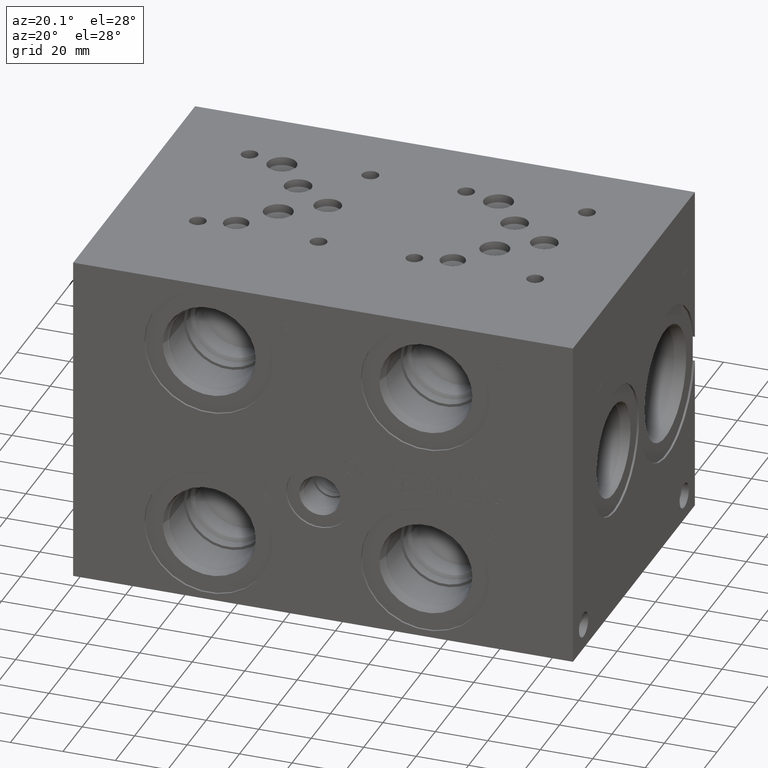
[diagram: clean part render]
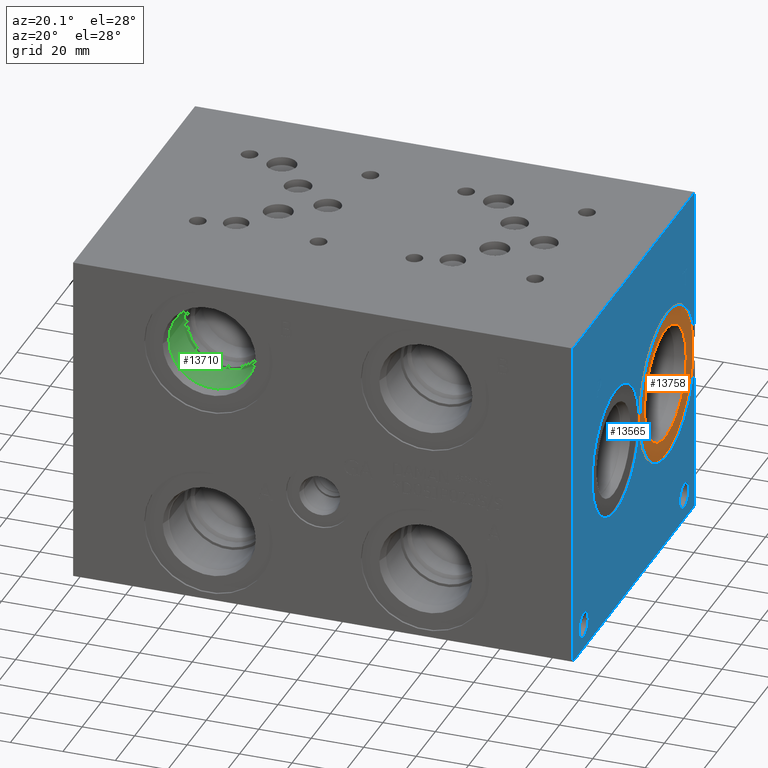
[diagram: same view with three faces highlighted in distinct colors, each labeled with its STEP entity id]
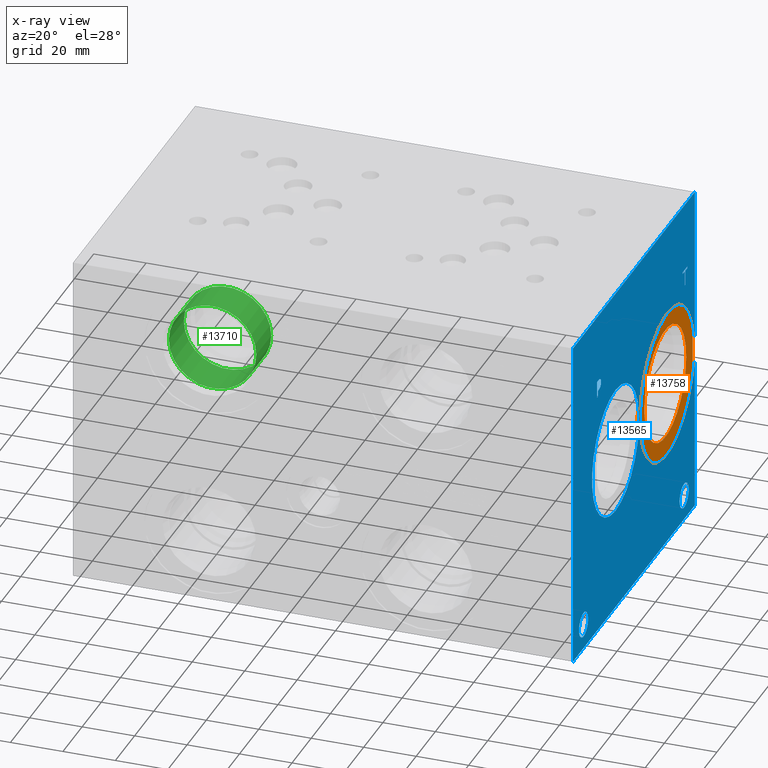
[diagram: x-ray of the same camera — body ghosted, the three highlighted faces saturated]
A machine part, auxiliary view with three faces highlighted in distinct colors.
The next image is the same camera in x-ray (body ghosted, the three faces saturated) — at least one of them is partly hidden behind the body in this view.
Their STEP definitions:

[orange] entity #13758 — the highlighted planar face has unit normal (1, 0, 0).
#471=CIRCLE('',#14603,28.9814);
#472=CIRCLE('',#14604,21.7551);
#1136=FACE_BOUND('',#2655,.T.);
#1852=FACE_OUTER_BOUND('',#2654,.T.);
#2654=EDGE_LOOP('',(#12041,#12042));
#2655=EDGE_LOOP('',(#12043));
#3899=LINE('',#23843,#5119);
#5119=VECTOR('',#17468,10.);
#6425=VERTEX_POINT('',#23841);
#6426=VERTEX_POINT('',#23842);
#6427=VERTEX_POINT('',#23845);
#8324=EDGE_CURVE('',#6425,#6426,#3899,.T.);
#8325=EDGE_CURVE('',#6425,#6426,#471,.T.);
#8326=EDGE_CURVE('',#6427,#6427,#472,.T.);
#12041=ORIENTED_EDGE('',*,*,#8324,.F.);
#12042=ORIENTED_EDGE('',*,*,#8325,.T.);
#12043=ORIENTED_EDGE('',*,*,#8326,.F.);
#12550=PLANE('',#14602);
#13758=ADVANCED_FACE('',(#1852,#1136),#12550,.T.);
#14602=AXIS2_PLACEMENT_3D('',#23840,#17466,#17467);
#14603=AXIS2_PLACEMENT_3D('',#23844,#17469,#17470);
#14604=AXIS2_PLACEMENT_3D('',#23846,#17471,#17472);
#17466=DIRECTION('center_axis',(1.,0.,0.));
#17467=DIRECTION('ref_axis',(0.,1.,0.));
#17468=DIRECTION('',(0.,0.,-1.));
#17469=DIRECTION('center_axis',(1.,0.,0.));
#17470=DIRECTION('ref_axis',(0.,1.,0.));
#17471=DIRECTION('center_axis',(1.,0.,0.));
#17472=DIRECTION('ref_axis',(0.,1.,0.));
#23840=CARTESIAN_POINT('Origin',(189.7126,98.425,63.5));
#23841=CARTESIAN_POINT('',(189.7126,127.,68.3364161276714));
#23842=CARTESIAN_POINT('',(189.7126,127.,58.6635838723286));
#23843=CARTESIAN_POINT('',(189.7126,127.,31.75));
#23844=CARTESIAN_POINT('Origin',(189.7126,98.425,63.5));
#23845=CARTESIAN_POINT('',(189.7126,76.6699,63.5));
#23846=CARTESIAN_POINT('Origin',(189.7126,98.425,63.5));

[blue] entity #13565 — the highlighted planar face has unit normal (1, 0, 0).
#186=CIRCLE('',#14125,28.9814);
#187=CIRCLE('',#14126,24.4856);
#188=CIRCLE('',#14127,24.4856);
#189=CIRCLE('',#14128,4.7625);
#190=CIRCLE('',#14129,4.7625);
#191=CIRCLE('',#14130,4.7625);
#192=CIRCLE('',#14131,4.7625);
#854=B_SPLINE_CURVE_WITH_KNOTS('',2,(#22734,#22735,#22736,#22737),
 .UNSPECIFIED.,.F.,.F.,(3,1,3),(0.,1.,2.),.UNSPECIFIED.);
#856=B_SPLINE_CURVE_WITH_KNOTS('',2,(#22755,#22756,#22757,#22758),
 .UNSPECIFIED.,.F.,.F.,(3,1,3),(0.,1.,2.),.UNSPECIFIED.);
#858=B_SPLINE_CURVE_WITH_KNOTS('',2,(#22804,#22805,#22806,#22807),
 .UNSPECIFIED.,.F.,.F.,(3,1,3),(0.,1.,2.),.UNSPECIFIED.);
#860=B_SPLINE_CURVE_WITH_KNOTS('',2,(#22822,#22823,#22824,#22825),
 .UNSPECIFIED.,.F.,.F.,(3,1,3),(0.,1.,2.),.UNSPECIFIED.);
#1101=FACE_BOUND('',#2427,.T.);
#1102=FACE_BOUND('',#2428,.T.);
#1103=FACE_BOUND('',#2429,.T.);
#1104=FACE_BOUND('',#2430,.T.);
#1105=FACE_BOUND('',#2431,.T.);
#1659=FACE_OUTER_BOUND('',#2426,.T.);
#2426=EDGE_LOOP('',(#11106,#11107,#11108,#11109,#11110,#11111));
#2427=EDGE_LOOP('',(#11112,#11113));
#2428=EDGE_LOOP('',(#11114,#11115));
#2429=EDGE_LOOP('',(#11116,#11117));
#2430=EDGE_LOOP('',(#11118,#11119,#11120,#11121,#11122,#11123,#11124,#11125));
#2431=EDGE_LOOP('',(#11126,#11127,#11128,#11129,#11130,#11131,#11132,#11133,
#11134));
#2765=LINE('',#17943,#3985);
#3695=LINE('',#22767,#4915);
#3698=LINE('',#22773,#4918);
#3701=LINE('',#22779,#4921);
#3704=LINE('',#22785,#4924);
#3707=LINE('',#22791,#4927);
#3711=LINE('',#22836,#4931);
#3712=LINE('',#22837,#4932);
#3713=LINE('',#22839,#4933);
#3714=LINE('',#22840,#4934);
#3715=LINE('',#22855,#4935);
#3716=LINE('',#22857,#4936);
#3717=LINE('',#22859,#4937);
#3718=LINE('',#22861,#4938);
#3719=LINE('',#22863,#4939);
#3720=LINE('',#22865,#4940);
#3721=LINE('',#22867,#4941);
#3722=LINE('',#22868,#4942);
#3985=VECTOR('',#14754,10.);
#4915=VECTOR('',#16296,10.);
#4918=VECTOR('',#16301,10.);
#4921=VECTOR('',#16306,10.);
#4924=VECTOR('',#16311,10.);
#4927=VECTOR('',#16316,10.);
#4931=VECTOR('',#16326,10.);
#4932=VECTOR('',#16327,10.);
#4933=VECTOR('',#16328,10.);
#4934=VECTOR('',#16329,10.);
#4935=VECTOR('',#16342,10.);
#4936=VECTOR('',#16343,10.);
#4937=VECTOR('',#16344,10.);
#4938=VECTOR('',#16345,10.);
#4939=VECTOR('',#16346,10.);
#4940=VECTOR('',#16347,10.);
#4941=VECTOR('',#16348,10.);
#4942=VECTOR('',#16349,10.);
#5201=VERTEX_POINT('',#17940);
#5202=VERTEX_POINT('',#17942);
#6064=VERTEX_POINT('',#22732);
#6065=VERTEX_POINT('',#22733);
#6068=VERTEX_POINT('',#22754);
#6070=VERTEX_POINT('',#22766);
#6072=VERTEX_POINT('',#22772);
#6074=VERTEX_POINT('',#22778);
#6076=VERTEX_POINT('',#22784);
#6078=VERTEX_POINT('',#22790);
#6080=VERTEX_POINT('',#22803);
#6082=VERTEX_POINT('',#22832);
#6083=VERTEX_POINT('',#22833);
#6084=VERTEX_POINT('',#22835);
#6085=VERTEX_POINT('',#22838);
#6086=VERTEX_POINT('',#22841);
#6087=VERTEX_POINT('',#22842);
#6088=VERTEX_POINT('',#22845);
#6089=VERTEX_POINT('',#22846);
#6090=VERTEX_POINT('',#22849);
#6091=VERTEX_POINT('',#22850);
#6092=VERTEX_POINT('',#22853);
#6093=VERTEX_POINT('',#22854);
#6094=VERTEX_POINT('',#22856);
#6095=VERTEX_POINT('',#22858);
#6096=VERTEX_POINT('',#22860);
#6097=VERTEX_POINT('',#22862);
#6098=VERTEX_POINT('',#22864);
#6099=VERTEX_POINT('',#22866);
#6544=EDGE_CURVE('',#5201,#5202,#2765,.T.);
#7824=EDGE_CURVE('',#6064,#6065,#854,.T.);
#7828=EDGE_CURVE('',#6068,#6064,#856,.T.);
#7831=EDGE_CURVE('',#6070,#6068,#3695,.T.);
#7834=EDGE_CURVE('',#6072,#6070,#3698,.T.);
#7837=EDGE_CURVE('',#6074,#6072,#3701,.T.);
#7840=EDGE_CURVE('',#6076,#6074,#3704,.T.);
#7843=EDGE_CURVE('',#6078,#6076,#3707,.T.);
#7846=EDGE_CURVE('',#6080,#6078,#858,.T.);
#7849=EDGE_CURVE('',#6065,#6080,#860,.T.);
#7851=EDGE_CURVE('',#6082,#6083,#186,.T.);
#7852=EDGE_CURVE('',#6083,#6084,#3711,.T.);
#7853=EDGE_CURVE('',#5202,#6084,#3712,.T.);
#7854=EDGE_CURVE('',#5201,#6085,#3713,.T.);
#7855=EDGE_CURVE('',#6085,#6082,#3714,.T.);
#7856=EDGE_CURVE('',#6086,#6087,#187,.T.);
#7857=EDGE_CURVE('',#6087,#6086,#188,.T.);
#7858=EDGE_CURVE('',#6088,#6089,#189,.T.);
#7859=EDGE_CURVE('',#6089,#6088,#190,.T.);
#7860=EDGE_CURVE('',#6090,#6091,#191,.T.);
#7861=EDGE_CURVE('',#6091,#6090,#192,.T.);
#7862=EDGE_CURVE('',#6092,#6093,#3715,.T.);
#7863=EDGE_CURVE('',#6093,#6094,#3716,.T.);
#7864=EDGE_CURVE('',#6094,#6095,#3717,.T.);
#7865=EDGE_CURVE('',#6095,#6096,#3718,.T.);
#7866=EDGE_CURVE('',#6096,#6097,#3719,.T.);
#7867=EDGE_CURVE('',#6097,#6098,#3720,.T.);
#7868=EDGE_CURVE('',#6098,#6099,#3721,.T.);
#7869=EDGE_CURVE('',#6099,#6092,#3722,.T.);
#11106=ORIENTED_EDGE('',*,*,#7851,.T.);
#11107=ORIENTED_EDGE('',*,*,#7852,.T.);
#11108=ORIENTED_EDGE('',*,*,#7853,.F.);
#11109=ORIENTED_EDGE('',*,*,#6544,.F.);
#11110=ORIENTED_EDGE('',*,*,#7854,.T.);
#11111=ORIENTED_EDGE('',*,*,#7855,.T.);
#11112=ORIENTED_EDGE('',*,*,#7856,.T.);
#11113=ORIENTED_EDGE('',*,*,#7857,.T.);
#11114=ORIENTED_EDGE('',*,*,#7858,.T.);
#11115=ORIENTED_EDGE('',*,*,#7859,.T.);
#11116=ORIENTED_EDGE('',*,*,#7860,.T.);
#11117=ORIENTED_EDGE('',*,*,#7861,.T.);
#11118=ORIENTED_EDGE('',*,*,#7862,.T.);
#11119=ORIENTED_EDGE('',*,*,#7863,.T.);
#11120=ORIENTED_EDGE('',*,*,#7864,.T.);
#11121=ORIENTED_EDGE('',*,*,#7865,.T.);
#11122=ORIENTED_EDGE('',*,*,#7866,.T.);
#11123=ORIENTED_EDGE('',*,*,#7867,.T.);
#11124=ORIENTED_EDGE('',*,*,#7868,.T.);
#11125=ORIENTED_EDGE('',*,*,#7869,.T.);
#11126=ORIENTED_EDGE('',*,*,#7824,.T.);
#11127=ORIENTED_EDGE('',*,*,#7849,.T.);
#11128=ORIENTED_EDGE('',*,*,#7846,.T.);
#11129=ORIENTED_EDGE('',*,*,#7843,.T.);
#11130=ORIENTED_EDGE('',*,*,#7840,.T.);
#11131=ORIENTED_EDGE('',*,*,#7837,.T.);
#11132=ORIENTED_EDGE('',*,*,#7834,.T.);
#11133=ORIENTED_EDGE('',*,*,#7831,.T.);
#11134=ORIENTED_EDGE('',*,*,#7828,.T.);
#12501=PLANE('',#14124);
#13565=ADVANCED_FACE('',(#1659,#1101,#1102,#1103,#1104,#1105),#12501,.T.);
#14124=AXIS2_PLACEMENT_3D('',#22831,#16322,#16323);
#14125=AXIS2_PLACEMENT_3D('',#22834,#16324,#16325);
#14126=AXIS2_PLACEMENT_3D('',#22843,#16330,#16331);
#14127=AXIS2_PLACEMENT_3D('',#22844,#16332,#16333);
#14128=AXIS2_PLACEMENT_3D('',#22847,#16334,#16335);
#14129=AXIS2_PLACEMENT_3D('',#22848,#16336,#16337);
#14130=AXIS2_PLACEMENT_3D('',#22851,#16338,#16339);
#14131=AXIS2_PLACEMENT_3D('',#22852,#16340,#16341);
#14754=DIRECTION('',(0.,0.,1.));
#16296=DIRECTION('',(0.,1.,0.));
#16301=DIRECTION('',(0.,0.,1.));
#16306=DIRECTION('',(0.,-1.,0.));
#16311=DIRECTION('',(0.,0.,-1.));
#16316=DIRECTION('',(0.,-1.,0.));
#16322=DIRECTION('center_axis',(1.,0.,0.));
#16323=DIRECTION('ref_axis',(0.,1.,0.));
#16324=DIRECTION('center_axis',(-1.,0.,0.));
#16325=DIRECTION('ref_axis',(0.,1.,0.));
#16326=DIRECTION('',(0.,0.,1.));
#16327=DIRECTION('',(0.,1.,0.));
#16328=DIRECTION('',(0.,1.,0.));
#16329=DIRECTION('',(0.,0.,1.));
#16330=DIRECTION('center_axis',(-1.,0.,0.));
#16331=DIRECTION('ref_axis',(0.,0.,-1.));
#16332=DIRECTION('center_axis',(-1.,0.,0.));
#16333=DIRECTION('ref_axis',(0.,0.,-1.));
#16334=DIRECTION('center_axis',(-1.,0.,0.));
#16335=DIRECTION('ref_axis',(0.,1.,0.));
#16336=DIRECTION('center_axis',(-1.,0.,0.));
#16337=DIRECTION('ref_axis',(0.,1.,0.));
#16338=DIRECTION('center_axis',(-1.,0.,0.));
#16339=DIRECTION('ref_axis',(0.,1.,0.));
#16340=DIRECTION('center_axis',(-1.,0.,0.));
#16341=DIRECTION('ref_axis',(0.,1.,0.));
#16342=DIRECTION('',(0.,-1.,0.));
#16343=DIRECTION('',(0.,0.,1.));
#16344=DIRECTION('',(0.,-1.,0.));
#16345=DIRECTION('',(0.,0.,1.));
#16346=DIRECTION('',(0.,1.,0.));
#16347=DIRECTION('',(0.,0.,-1.));
#16348=DIRECTION('',(0.,-1.,0.));
#16349=DIRECTION('',(0.,0.,-1.));
#17940=CARTESIAN_POINT('',(190.5,0.,0.));
#17942=CARTESIAN_POINT('',(190.5,0.,127.));
#17943=CARTESIAN_POINT('',(190.5,0.,0.));
#22732=CARTESIAN_POINT('',(190.5,28.5068172023594,100.410018143971));
#22733=CARTESIAN_POINT('',(190.5,29.263259654532,98.8919873726039));
#22734=CARTESIAN_POINT('Ctrl Pts',(190.5,28.5068172023594,100.410018143971));
#22735=CARTESIAN_POINT('Ctrl Pts',(190.5,28.8618820268486,100.168162393956));
#22736=CARTESIAN_POINT('Ctrl Pts',(190.5,29.263259654532,99.4220116758269));
#22737=CARTESIAN_POINT('Ctrl Pts',(190.5,29.263259654532,98.8919873726039));
#22754=CARTESIAN_POINT('',(190.5,26.8447021543883,100.806249904633));
#22755=CARTESIAN_POINT('Ctrl Pts',(190.5,26.8447021543883,100.806249904633));
#22756=CARTESIAN_POINT('Ctrl Pts',(190.5,27.4107475267624,100.806249904633));
#22757=CARTESIAN_POINT('Ctrl Pts',(190.5,28.203211048086,100.620998691856));
#22758=CARTESIAN_POINT('Ctrl Pts',(190.5,28.5068172023594,100.410018143971));
#22766=CARTESIAN_POINT('',(190.5,25.2494833776978,100.806249904633));
#22767=CARTESIAN_POINT('',(190.5,12.6247416888489,100.806249904633));
#22772=CARTESIAN_POINT('',(190.5,25.2494833776978,94.45625));
#22773=CARTESIAN_POINT('',(190.5,25.2494833776978,47.228125));
#22778=CARTESIAN_POINT('',(190.5,26.0934055692373,94.45625));
#22779=CARTESIAN_POINT('',(190.5,13.0467027846186,94.45625));
#22784=CARTESIAN_POINT('',(190.5,26.0934055692373,96.8233488299279));
#22785=CARTESIAN_POINT('',(190.5,26.0934055692373,48.4116744149639));
#22790=CARTESIAN_POINT('',(190.5,26.8086810852372,96.8233488299279));
#22791=CARTESIAN_POINT('',(190.5,13.4043405426186,96.8233488299279));
#22803=CARTESIAN_POINT('',(190.5,28.7075060162011,97.4820198086904));
#22804=CARTESIAN_POINT('Ctrl Pts',(190.5,28.7075060162011,97.4820198086904));
#22805=CARTESIAN_POINT('Ctrl Pts',(190.5,28.3781705268198,97.1578301863307));
#22806=CARTESIAN_POINT('Ctrl Pts',(190.5,27.4879355320861,96.8233488299279));
#22807=CARTESIAN_POINT('Ctrl Pts',(190.5,26.8086810852372,96.8233488299279));
#22822=CARTESIAN_POINT('Ctrl Pts',(190.5,29.263259654532,98.8919873726039));
#22823=CARTESIAN_POINT('Ctrl Pts',(190.5,29.263259654532,98.4803180108774));
#22824=CARTESIAN_POINT('Ctrl Pts',(190.5,28.9699452343018,97.7393131597695));
#22825=CARTESIAN_POINT('Ctrl Pts',(190.5,28.7075060162011,97.4820198086904));
#22831=CARTESIAN_POINT('Origin',(190.5,0.,0.));
#22832=CARTESIAN_POINT('',(190.5,127.,58.6635838723286));
#22833=CARTESIAN_POINT('',(190.5,127.,68.3364161276714));
#22834=CARTESIAN_POINT('Origin',(190.5,98.425,63.5));
#22835=CARTESIAN_POINT('',(190.5,127.,127.));
#22836=CARTESIAN_POINT('',(190.5,127.,0.));
#22837=CARTESIAN_POINT('',(190.5,0.,127.));
#22838=CARTESIAN_POINT('',(190.5,127.,0.));
#22839=CARTESIAN_POINT('',(190.5,0.,0.));
#22840=CARTESIAN_POINT('',(190.5,127.,0.));
#22841=CARTESIAN_POINT('',(190.5,44.45,39.0144));
#22842=CARTESIAN_POINT('',(190.5,44.45,87.9856));
#22843=CARTESIAN_POINT('Origin',(190.5,44.45,63.5));
#22844=CARTESIAN_POINT('Origin',(190.5,44.45,63.5));
#22845=CARTESIAN_POINT('',(190.5,120.6627,9.525));
#22846=CARTESIAN_POINT('',(190.5,111.1377,9.525));
#22847=CARTESIAN_POINT('Origin',(190.5,115.9002,9.525));
#22848=CARTESIAN_POINT('Origin',(190.5,115.9002,9.525));
#22849=CARTESIAN_POINT('',(190.5,15.8877,9.525));
#22850=CARTESIAN_POINT('',(190.5,6.3627,9.525));
#22851=CARTESIAN_POINT('Origin',(190.5,11.1252,9.525));
#22852=CARTESIAN_POINT('Origin',(190.5,11.1252,9.525));
#22853=CARTESIAN_POINT('',(190.5,117.269165271453,94.45625));
#22854=CARTESIAN_POINT('',(190.5,116.425243079913,94.45625));
#22855=CARTESIAN_POINT('',(190.5,58.6345826357265,94.45625));
#22856=CARTESIAN_POINT('',(190.5,116.425243079913,100.054953319482));
#22857=CARTESIAN_POINT('',(190.5,116.425243079913,47.228125));
#22858=CARTESIAN_POINT('',(190.5,114.294854132978,100.054953319482));
#22859=CARTESIAN_POINT('',(190.5,58.2126215399567,100.054953319482));
#22860=CARTESIAN_POINT('',(190.5,114.294854132978,100.806249904633));
#22861=CARTESIAN_POINT('',(190.5,114.294854132978,50.0274766597408));
#22862=CARTESIAN_POINT('',(190.5,119.399554218388,100.806249904633));
#22863=CARTESIAN_POINT('',(190.5,57.1474270664892,100.806249904633));
#22864=CARTESIAN_POINT('',(190.5,119.399554218388,100.054953319482));
#22865=CARTESIAN_POINT('',(190.5,119.399554218388,50.4031249523163));
#22866=CARTESIAN_POINT('',(190.5,117.269165271453,100.054953319482));
#22867=CARTESIAN_POINT('',(190.5,59.699777109194,100.054953319482));
#22868=CARTESIAN_POINT('',(190.5,117.269165271453,50.0274766597408));

[green] entity #13710 — the highlighted cylindrical surface (bore or boss wall) has radius 16.67 mm, axis along (0, -1, 0).
#140=CYLINDRICAL_SURFACE('',#14486,16.67);
#400=CIRCLE('',#14483,16.67);
#401=CIRCLE('',#14484,16.67);
#403=CIRCLE('',#14487,16.67);
#1804=FACE_OUTER_BOUND('',#2598,.T.);
#2598=EDGE_LOOP('',(#11812,#11813,#11814,#11815,#11816));
#3859=LINE('',#23616,#5079);
#5079=VECTOR('',#17198,16.67);
#6351=VERTEX_POINT('',#23607);
#6352=VERTEX_POINT('',#23608);
#6354=VERTEX_POINT('',#23614);
#8213=EDGE_CURVE('',#6351,#6352,#400,.T.);
#8214=EDGE_CURVE('',#6352,#6351,#401,.T.);
#8216=EDGE_CURVE('',#6354,#6354,#403,.T.);
#8217=EDGE_CURVE('',#6354,#6352,#3859,.T.);
#11812=ORIENTED_EDGE('',*,*,#8216,.F.);
#11813=ORIENTED_EDGE('',*,*,#8217,.T.);
#11814=ORIENTED_EDGE('',*,*,#8213,.F.);
#11815=ORIENTED_EDGE('',*,*,#8214,.F.);
#11816=ORIENTED_EDGE('',*,*,#8217,.F.);
#13710=ADVANCED_FACE('',(#1804),#140,.F.);
#14483=AXIS2_PLACEMENT_3D('',#23609,#17188,#17189);
#14484=AXIS2_PLACEMENT_3D('',#23610,#17190,#17191);
#14486=AXIS2_PLACEMENT_3D('',#23613,#17194,#17195);
#14487=AXIS2_PLACEMENT_3D('',#23615,#17196,#17197);
#17188=DIRECTION('center_axis',(0.,-1.,0.));
#17189=DIRECTION('ref_axis',(1.,0.,0.));
#17190=DIRECTION('center_axis',(0.,-1.,0.));
#17191=DIRECTION('ref_axis',(1.,0.,0.));
#17194=DIRECTION('center_axis',(0.,-1.,0.));
#17195=DIRECTION('ref_axis',(1.,0.,0.));
#17196=DIRECTION('center_axis',(0.,1.,0.));
#17197=DIRECTION('ref_axis',(1.,0.,0.));
#17198=DIRECTION('',(0.,1.,0.));
#23607=CARTESIAN_POINT('',(68.2574,19.8374,99.9998));
#23608=CARTESIAN_POINT('',(34.9174,19.8374,99.9998));
#23609=CARTESIAN_POINT('Origin',(51.5874,19.8374,99.9998));
#23610=CARTESIAN_POINT('Origin',(51.5874,19.8374,99.9998));
#23613=CARTESIAN_POINT('Origin',(51.5874,9.9187,99.9998));
#23614=CARTESIAN_POINT('',(34.9174,4.2723,99.9998));
#23615=CARTESIAN_POINT('Origin',(51.5874,4.2723,99.9998));
#23616=CARTESIAN_POINT('',(34.9174,9.9187,99.9998));